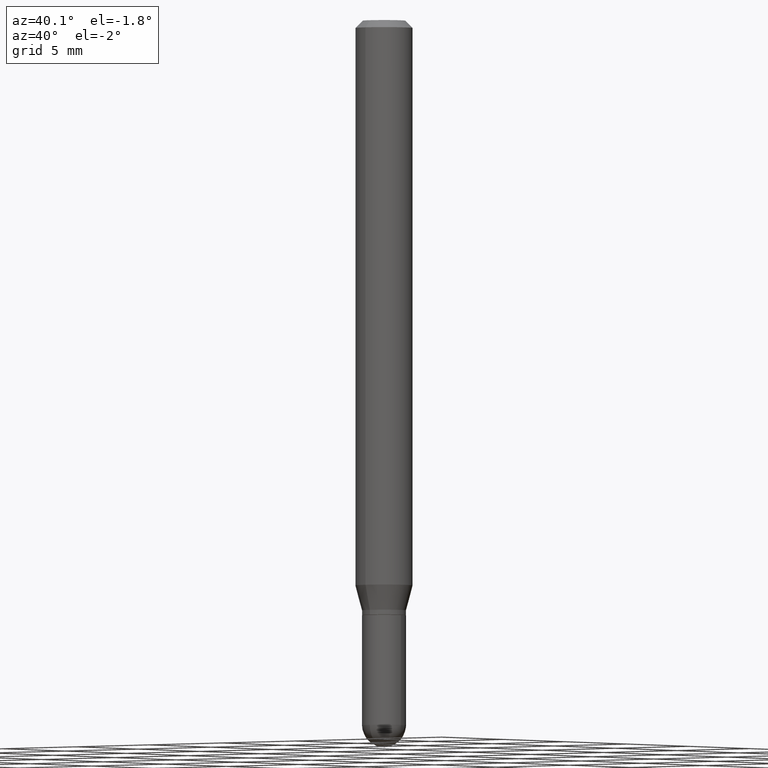
[diagram: clean part render]
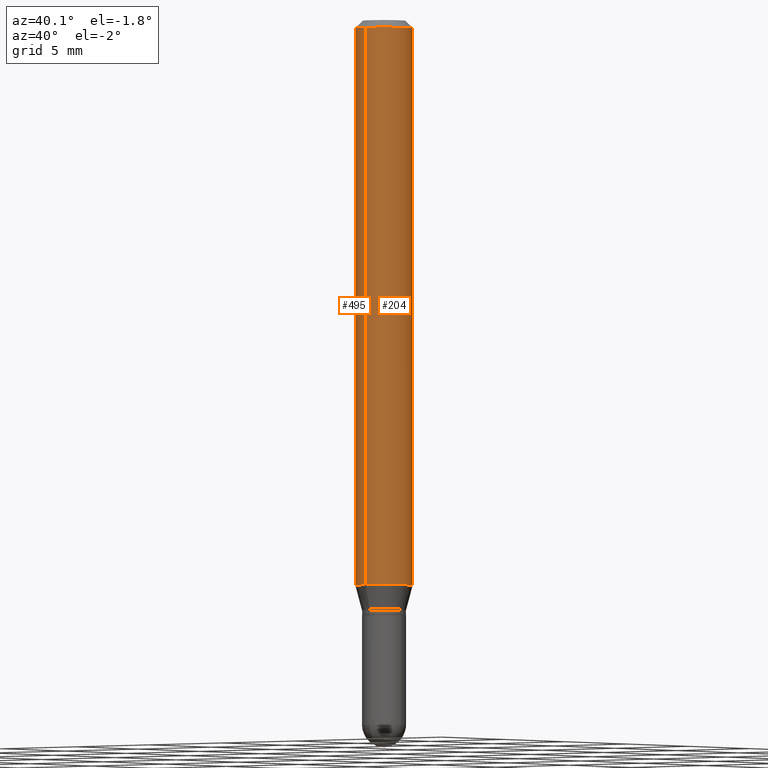
[diagram: same view with one multi-face feature highlighted, each face labeled with its STEP entity id]
A machine part, auxiliary view. The highlighted faces form ONE feature: a constant-radius fillet chain: 2 tangent blend faces with common blend radius 1.4999 mm. The faces share edges in the B-rep.
Their STEP definitions:
[1] entity #495 (Cylinder):
#2 = VERTEX_POINT ( 'NONE', #159 ) ;
#3 = CARTESIAN_POINT ( 'NONE',  ( 4.195754854663390985E-16, 0.05904999999999999832, -2.061692209999060444E-16 ) ) ;
#10 = DIRECTION ( 'NONE',  ( -2.445501350679225311E-29, 3.491434733275292845E-15, 1.000000000000000000 ) ) ;
#18 = CARTESIAN_POINT ( 'NONE',  ( 0.000000000000000000, 0.000000000000000000, 0.000000000000000000 ) ) ;
#44 = LINE ( 'NONE', #3, #276 ) ;
#51 = FACE_OUTER_BOUND ( 'NONE', #386, .T. ) ;
#64 = CIRCLE ( 'NONE', #458, 0.05904999999999999832 ) ;
#71 = ORIENTED_EDGE ( 'NONE', *, *, #424, .T. ) ;
#73 = EDGE_CURVE ( 'NONE', #451, #425, #64, .T. ) ;
#89 = CARTESIAN_POINT ( 'NONE',  ( 3.668252026018860422E-31, -5.237152099912971340E-17, -0.01500000000000009139 ) ) ;
#128 = CARTESIAN_POINT ( 'NONE',  ( 4.195754854663677441E-16, 0.05904999999999994975, -0.01500000000000029955 ) ) ;
#139 = VECTOR ( 'NONE', #199, 39.37007874015748143 ) ;
#157 = CARTESIAN_POINT ( 'NONE',  ( -4.123439461173739834E-16, -0.05904999999999999832, 2.061692209999060444E-16 ) ) ;
#159 = CARTESIAN_POINT ( 'NONE',  ( -4.123439461173736383E-16, -0.05905000000000005383, -0.01499999999999988495 ) ) ;
#165 = ORIENTED_EDGE ( 'NONE', *, *, #395, .F. ) ;
#191 = LINE ( 'NONE', #157, #139 ) ;
#193 = CARTESIAN_POINT ( 'NONE',  ( -4.123439461173455844E-16, -0.05905000000000406452, -1.162784301395928255 ) ) ;
#199 = DIRECTION ( 'NONE',  ( -2.445501350679225311E-29, 3.491434733275292845E-15, 1.000000000000000000 ) ) ;
#200 = CYLINDRICAL_SURFACE ( 'NONE', #327, 0.05904999999999999832 ) ;
#235 = DIRECTION ( 'NONE',  ( -2.445501350679225311E-29, 3.491434733275292845E-15, 1.000000000000000000 ) ) ;
#257 = ORIENTED_EDGE ( 'NONE', *, *, #420, .F. ) ;
#276 = VECTOR ( 'NONE', #479, 39.37007874015748143 ) ;
#290 = DIRECTION ( 'NONE',  ( -6.982962677686265922E-15, -1.000000000000000000, 4.626330217890369336E-15 ) ) ;
#301 = CIRCLE ( 'NONE', #348, 0.05904999999999999832 ) ;
#318 = ORIENTED_EDGE ( 'NONE', *, *, #73, .T. ) ;
#327 = AXIS2_PLACEMENT_3D ( 'NONE', #18, #10, #344 ) ;
#341 = CARTESIAN_POINT ( 'NONE',  ( 2.843590579612342672E-29, -4.059785497200991019E-15, -1.162784301395928477 ) ) ;
#344 = DIRECTION ( 'NONE',  ( -6.982962677686265922E-15, -1.000000000000000000, 3.491434733275292845E-15 ) ) ;
#348 = AXIS2_PLACEMENT_3D ( 'NONE', #89, #235, #375 ) ;
#375 = DIRECTION ( 'NONE',  ( -6.982962677686265922E-15, -1.000000000000000000, 3.505890868245046092E-15 ) ) ;
#386 = EDGE_LOOP ( 'NONE', ( #257, #318, #71, #165 ) ) ;
#395 = EDGE_CURVE ( 'NONE', #471, #2, #301, .T. ) ;
#420 = EDGE_CURVE ( 'NONE', #451, #471, #44, .T. ) ;
#424 = EDGE_CURVE ( 'NONE', #425, #2, #191, .T. ) ;
#425 = VERTEX_POINT ( 'NONE', #193 ) ;
#445 = CARTESIAN_POINT ( 'NONE',  ( 4.195754854663673989E-16, 0.05904999999999592519, -1.162784301395928699 ) ) ;
#451 = VERTEX_POINT ( 'NONE', #445 ) ;
#458 = AXIS2_PLACEMENT_3D ( 'NONE', #341, #488, #290 ) ;
#471 = VERTEX_POINT ( 'NONE', #128 ) ;
#479 = DIRECTION ( 'NONE',  ( -2.445501350679225311E-29, 3.491434733275292845E-15, 1.000000000000000000 ) ) ;
#488 = DIRECTION ( 'NONE',  ( -2.445501350679225311E-29, 3.491434733275292845E-15, 1.000000000000000000 ) ) ;
#495 = ADVANCED_FACE ( 'NONE', ( #51 ), #200, .T. ) ;
[2] entity #204 (Cylinder):
#2 = VERTEX_POINT ( 'NONE', #159 ) ;
#3 = CARTESIAN_POINT ( 'NONE',  ( 4.195754854663390985E-16, 0.05904999999999999832, -2.061692209999060444E-16 ) ) ;
#4 = CIRCLE ( 'NONE', #315, 0.05904999999999999832 ) ;
#24 = CIRCLE ( 'NONE', #387, 0.05904999999999999832 ) ;
#31 = CARTESIAN_POINT ( 'NONE',  ( 2.843590579612342672E-29, -4.059785497200991019E-15, -1.162784301395928477 ) ) ;
#35 = EDGE_LOOP ( 'NONE', ( #236, #114, #377, #54 ) ) ;
#40 = CARTESIAN_POINT ( 'NONE',  ( 3.668252026018860422E-31, -5.237152099912971340E-17, -0.01500000000000009139 ) ) ;
#44 = LINE ( 'NONE', #3, #276 ) ;
#54 = ORIENTED_EDGE ( 'NONE', *, *, #424, .F. ) ;
#114 = ORIENTED_EDGE ( 'NONE', *, *, #420, .T. ) ;
#128 = CARTESIAN_POINT ( 'NONE',  ( 4.195754854663677441E-16, 0.05904999999999994975, -0.01500000000000029955 ) ) ;
#139 = VECTOR ( 'NONE', #199, 39.37007874015748143 ) ;
#154 = DIRECTION ( 'NONE',  ( -2.445501350679225311E-29, 3.491434733275292845E-15, 1.000000000000000000 ) ) ;
#157 = CARTESIAN_POINT ( 'NONE',  ( -4.123439461173739834E-16, -0.05904999999999999832, 2.061692209999060444E-16 ) ) ;
#159 = CARTESIAN_POINT ( 'NONE',  ( -4.123439461173736383E-16, -0.05905000000000005383, -0.01499999999999988495 ) ) ;
#191 = LINE ( 'NONE', #157, #139 ) ;
#193 = CARTESIAN_POINT ( 'NONE',  ( -4.123439461173455844E-16, -0.05905000000000406452, -1.162784301395928255 ) ) ;
#199 = DIRECTION ( 'NONE',  ( -2.445501350679225311E-29, 3.491434733275292845E-15, 1.000000000000000000 ) ) ;
#204 = ADVANCED_FACE ( 'NONE', ( #217 ), #470, .T. ) ;
#217 = FACE_OUTER_BOUND ( 'NONE', #35, .T. ) ;
#223 = DIRECTION ( 'NONE',  ( -2.445501350679225311E-29, 3.491434733275292845E-15, 1.000000000000000000 ) ) ;
#236 = ORIENTED_EDGE ( 'NONE', *, *, #277, .T. ) ;
#268 = CARTESIAN_POINT ( 'NONE',  ( 0.000000000000000000, 0.000000000000000000, 0.000000000000000000 ) ) ;
#276 = VECTOR ( 'NONE', #479, 39.37007874015748143 ) ;
#277 = EDGE_CURVE ( 'NONE', #425, #451, #24, .T. ) ;
#281 = DIRECTION ( 'NONE',  ( -6.982962677686265922E-15, -1.000000000000000000, 3.505890868245046092E-15 ) ) ;
#314 = DIRECTION ( 'NONE',  ( -2.445501350679225311E-29, 3.491434733275292845E-15, 1.000000000000000000 ) ) ;
#315 = AXIS2_PLACEMENT_3D ( 'NONE', #40, #154, #281 ) ;
#323 = EDGE_CURVE ( 'NONE', #2, #471, #4, .T. ) ;
#359 = DIRECTION ( 'NONE',  ( -6.982962677686265922E-15, -1.000000000000000000, 4.626330217890369336E-15 ) ) ;
#377 = ORIENTED_EDGE ( 'NONE', *, *, #323, .F. ) ;
#387 = AXIS2_PLACEMENT_3D ( 'NONE', #31, #314, #359 ) ;
#420 = EDGE_CURVE ( 'NONE', #451, #471, #44, .T. ) ;
#424 = EDGE_CURVE ( 'NONE', #425, #2, #191, .T. ) ;
#425 = VERTEX_POINT ( 'NONE', #193 ) ;
#445 = CARTESIAN_POINT ( 'NONE',  ( 4.195754854663673989E-16, 0.05904999999999592519, -1.162784301395928699 ) ) ;
#451 = VERTEX_POINT ( 'NONE', #445 ) ;
#470 = CYLINDRICAL_SURFACE ( 'NONE', #508, 0.05904999999999999832 ) ;
#471 = VERTEX_POINT ( 'NONE', #128 ) ;
#479 = DIRECTION ( 'NONE',  ( -2.445501350679225311E-29, 3.491434733275292845E-15, 1.000000000000000000 ) ) ;
#498 = DIRECTION ( 'NONE',  ( -6.982962677686265922E-15, -1.000000000000000000, 3.491434733275292845E-15 ) ) ;
#508 = AXIS2_PLACEMENT_3D ( 'NONE', #268, #223, #498 ) ;